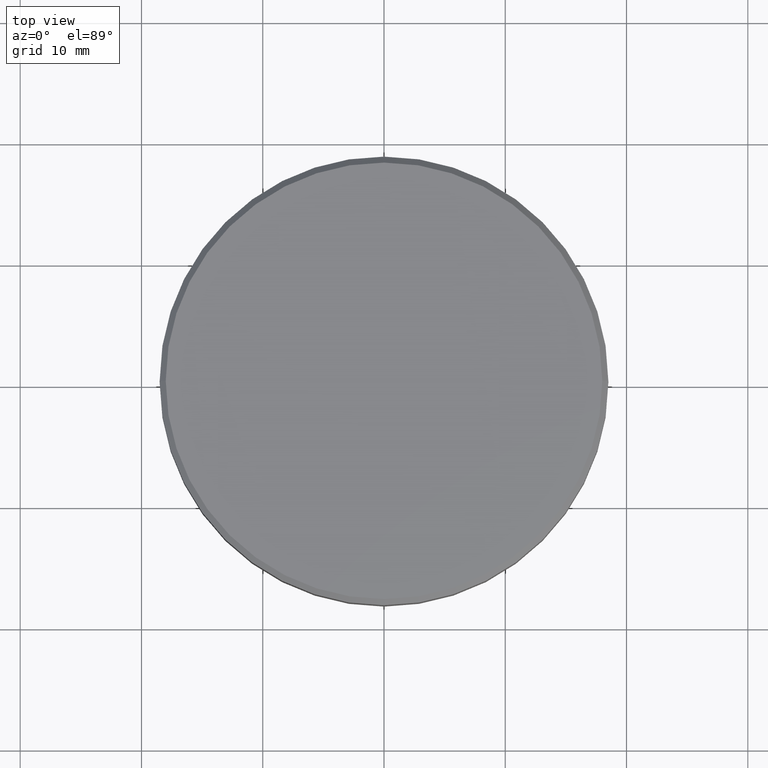
[diagram: clean part render]
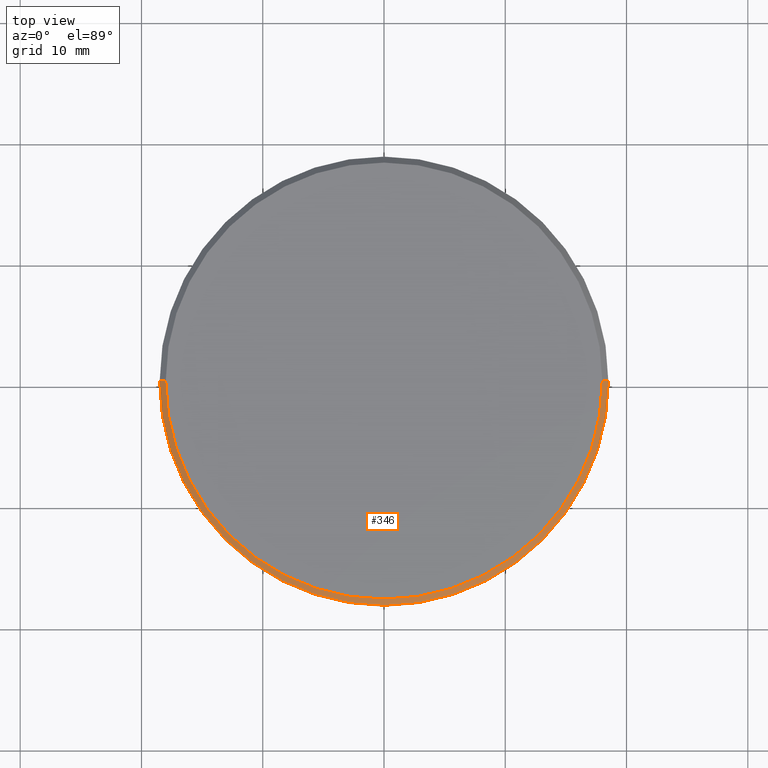
[diagram: same view with one face highlighted and labeled with its STEP entity id]
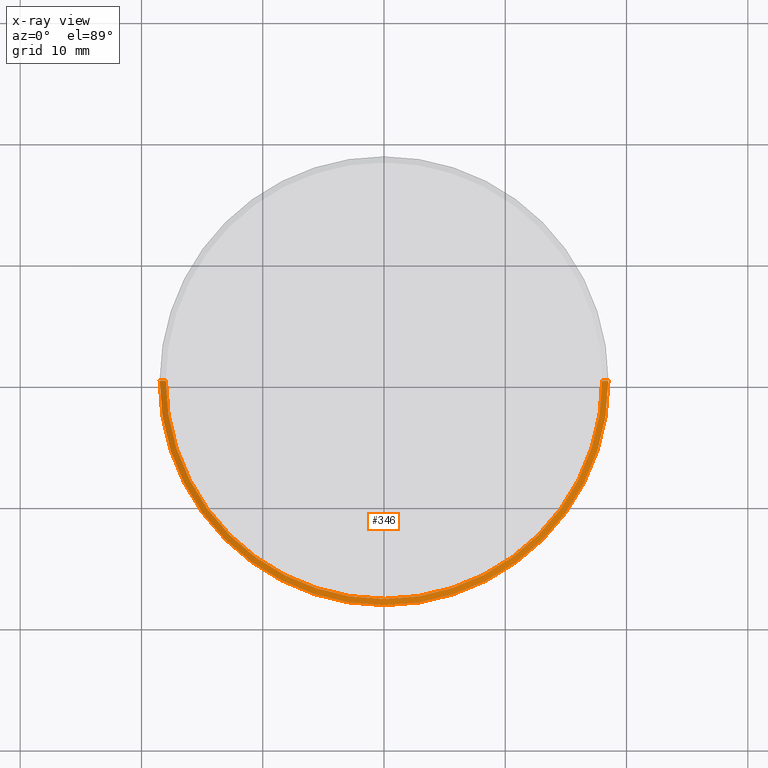
[diagram: x-ray of the same camera — body ghosted, the highlighted face saturated]
A machine part, top view. The second image highlights one B-rep face of the part: STEP entity #346.
The next image is the same camera in x-ray: the body ghosted, the highlighted face saturated — about 0% of this face is hidden behind the body in this view.
In plain terms, the highlighted conical surface has half-angle 45 deg.
Its self-contained STEP definition (entity closure, byte-faithful):
#2 = ORIENTED_EDGE ( 'NONE', *, *, #36, .F. ) ;
#3 = DIRECTION ( 'NONE',  ( 0.000000000000000000, 0.000000000000000000, -1.000000000000000000 ) ) ;
#4 = VECTOR ( 'NONE', #173, 1000.000000000000000 ) ;
#16 = CARTESIAN_POINT ( 'NONE',  ( -18.00000000000001066, 0.000000000000000000, 0.000000000000000000 ) ) ;
#20 = ORIENTED_EDGE ( 'NONE', *, *, #354, .F. ) ;
#21 = AXIS2_PLACEMENT_3D ( 'NONE', #272, #248, #307 ) ;
#22 = CIRCLE ( 'NONE', #390, 18.00000000000001066 ) ;
#35 = CARTESIAN_POINT ( 'NONE',  ( 18.00000000000001066, 2.234980408443920004E-15, 0.000000000000000000 ) ) ;
#36 = EDGE_CURVE ( 'NONE', #168, #352, #382, .T. ) ;
#41 = DIRECTION ( 'NONE',  ( -1.000000000000000000, 0.000000000000000000, 0.000000000000000000 ) ) ;
#57 = LINE ( 'NONE', #312, #4 ) ;
#74 = EDGE_LOOP ( 'NONE', ( #360, #20, #85, #2 ) ) ;
#76 = FACE_OUTER_BOUND ( 'NONE', #74, .T. ) ;
#80 = CARTESIAN_POINT ( 'NONE',  ( -18.50000000000000000, 2.265596578422603396E-15, -0.5000000000000004441 ) ) ;
#85 = ORIENTED_EDGE ( 'NONE', *, *, #407, .T. ) ;
#103 = CARTESIAN_POINT ( 'NONE',  ( 18.50000000000000000, 0.000000000000000000, -0.5000000000000004441 ) ) ;
#108 = CARTESIAN_POINT ( 'NONE',  ( 0.000000000000000000, 0.000000000000000000, 0.000000000000000000 ) ) ;
#120 = VERTEX_POINT ( 'NONE', #35 ) ;
#122 = AXIS2_PLACEMENT_3D ( 'NONE', #284, #3, #41 ) ;
#155 = DIRECTION ( 'NONE',  ( -0.7071067811865401342, 0.000000000000000000, -0.7071067811865549002 ) ) ;
#168 = VERTEX_POINT ( 'NONE', #103 ) ;
#173 = DIRECTION ( 'NONE',  ( 0.7071067811865401342, 8.659560562354844111E-17, -0.7071067811865549002 ) ) ;
#176 = EDGE_CURVE ( 'NONE', #120, #168, #57, .T. ) ;
#177 = VERTEX_POINT ( 'NONE', #387 ) ;
#212 = VECTOR ( 'NONE', #155, 1000.000000000000000 ) ;
#224 = DIRECTION ( 'NONE',  ( -0.000000000000000000, -0.000000000000000000, 1.000000000000000000 ) ) ;
#248 = DIRECTION ( 'NONE',  ( 0.000000000000000000, 0.000000000000000000, -1.000000000000000000 ) ) ;
#266 = LINE ( 'NONE', #16, #212 ) ;
#272 = CARTESIAN_POINT ( 'NONE',  ( 0.000000000000000000, 0.000000000000000000, -0.5000000000000004441 ) ) ;
#276 = CONICAL_SURFACE ( 'NONE', #122, 18.00000000000001066, 0.7853981633974378429 ) ;
#284 = CARTESIAN_POINT ( 'NONE',  ( 0.000000000000000000, 0.000000000000000000, 0.000000000000000000 ) ) ;
#286 = DIRECTION ( 'NONE',  ( 1.000000000000000000, 0.000000000000000000, 0.000000000000000000 ) ) ;
#307 = DIRECTION ( 'NONE',  ( 1.000000000000000000, 0.000000000000000000, 0.000000000000000000 ) ) ;
#312 = CARTESIAN_POINT ( 'NONE',  ( 18.00000000000001066, 2.204364238465237006E-15, 0.000000000000000000 ) ) ;
#346 = ADVANCED_FACE ( 'NONE', ( #76 ), #276, .T. ) ;
#352 = VERTEX_POINT ( 'NONE', #80 ) ;
#354 = EDGE_CURVE ( 'NONE', #177, #120, #22, .T. ) ;
#360 = ORIENTED_EDGE ( 'NONE', *, *, #176, .F. ) ;
#382 = CIRCLE ( 'NONE', #21, 18.50000000000000000 ) ;
#387 = CARTESIAN_POINT ( 'NONE',  ( -18.00000000000001066, 0.000000000000000000, 0.000000000000000000 ) ) ;
#390 = AXIS2_PLACEMENT_3D ( 'NONE', #108, #224, #286 ) ;
#407 = EDGE_CURVE ( 'NONE', #177, #352, #266, .T. ) ;